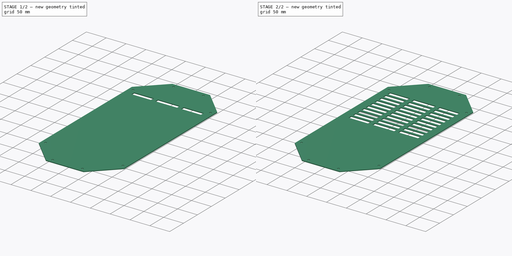
[diagram: build sequence overview — one tinted view per stage of 2, left to right]
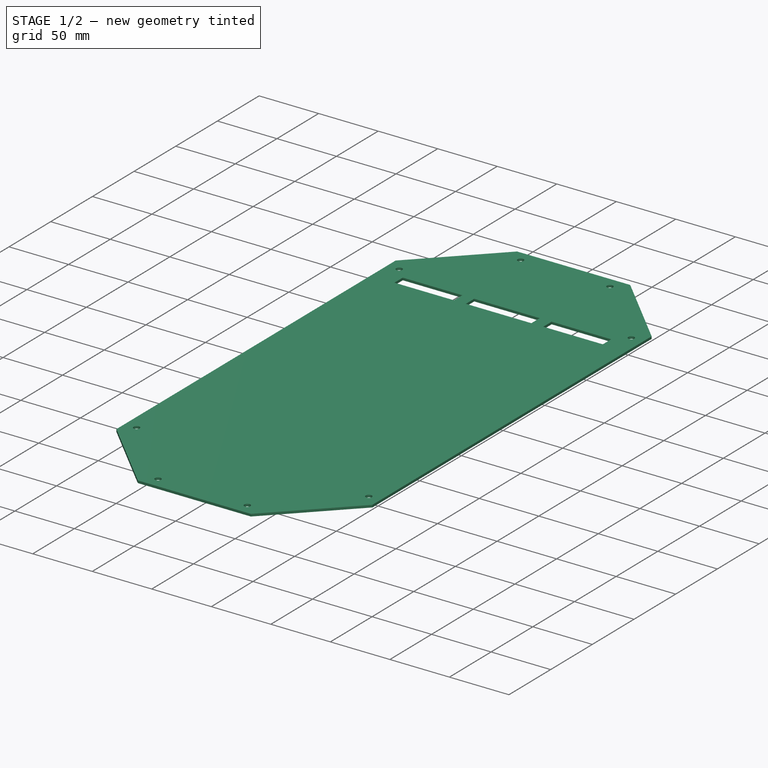
[diagram: stage 1 of 2 — iso view after this stage's code; geometry added in this stage tinted green]
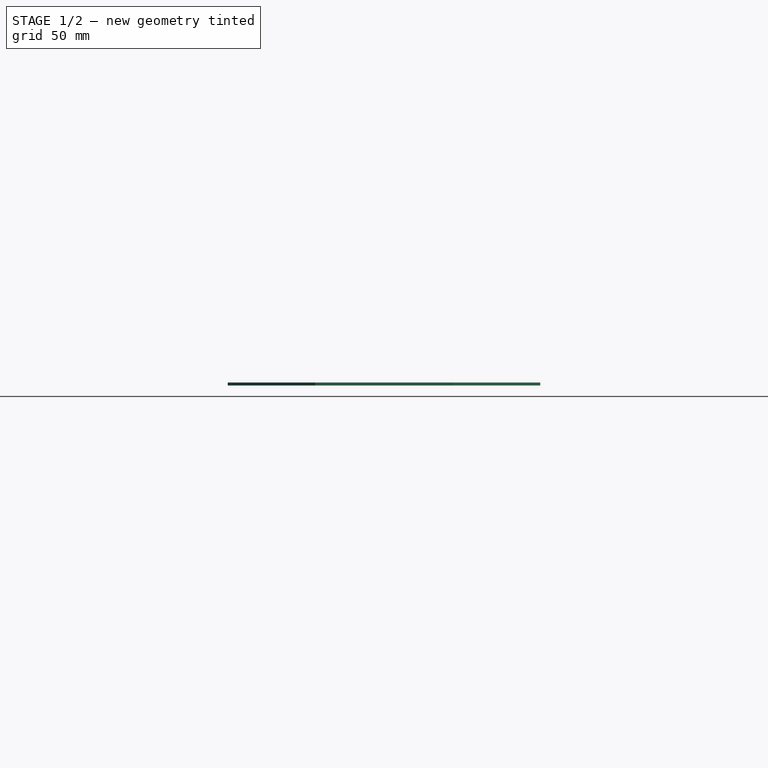
[diagram: stage 1 of 2 — front view after this stage's code; geometry added in this stage tinted green]
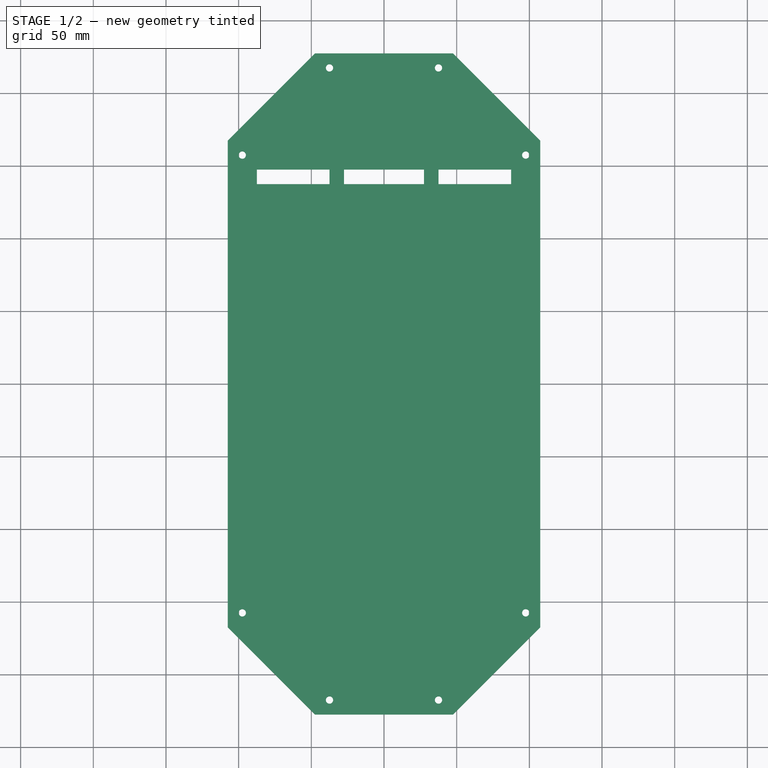
[diagram: stage 1 of 2 — top view after this stage's code; geometry added in this stage tinted green]
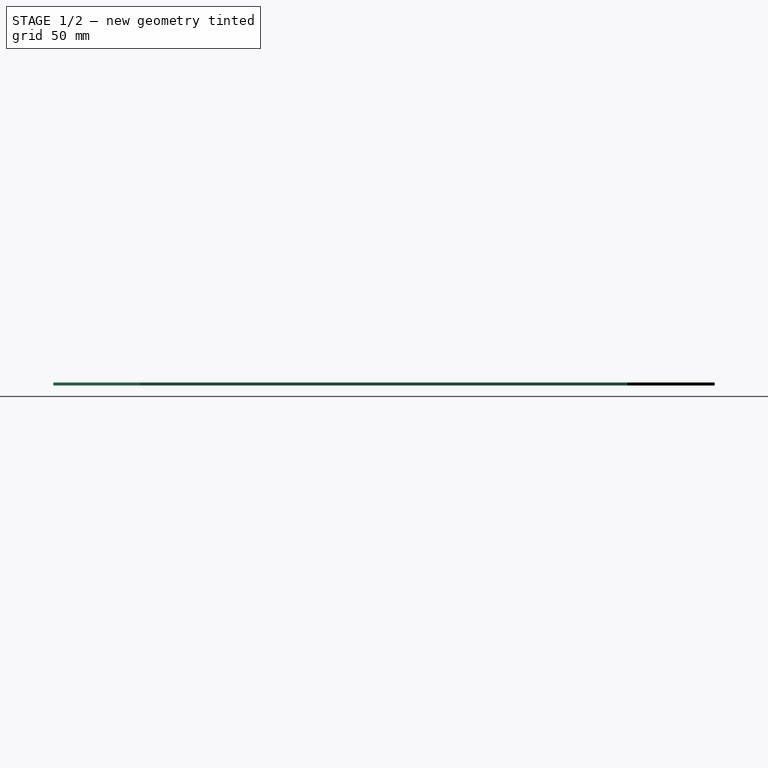
[diagram: stage 1 of 2 — right view after this stage's code; geometry added in this stage tinted green]
FCSTD DOCUMENT  (FreeCAD 0.16R6698 (Git))
Label: Back_Top_Plate
License: All rights reserved
LicenseURL: http://en.wikipedia.org/wiki/All_rights_reserved
objects: Sketcher::SketchObject×2, PartDesign::Pad×1, PartDesign::Pocket×1, PartDesign::LinearPattern×1
note: 7 computed .brp shape members not serialized (recipe doc carries the construction recipe); baked Part::Feature solids carry a one-line shape summary decoded from their .brp

FEATURE [Sketcher::SketchObject] Sketch
  sketch-geometry (16):
    g0: LineSegment StartX=-47.5 StartY=227.5 StartZ=0 EndX=47.5 EndY=227.5 EndZ=0
    g1: LineSegment StartX=107.5 StartY=167.5 StartZ=0 EndX=107.5 EndY=-167.5 EndZ=0
    g2: LineSegment StartX=47.5 StartY=-227.5 StartZ=0 EndX=-47.5 EndY=-227.5 EndZ=0
    g3: LineSegment StartX=-107.5 StartY=-167.5 StartZ=0 EndX=-107.5 EndY=167.5 EndZ=0
    g4: LineSegment StartX=-47.5 StartY=227.5 StartZ=0 EndX=-107.5 EndY=167.5 EndZ=0
    g5: LineSegment StartX=-107.5 StartY=-167.5 StartZ=0 EndX=-47.5 EndY=-227.5 EndZ=0
    g6: LineSegment StartX=47.5 StartY=-227.5 StartZ=0 EndX=107.5 EndY=-167.5 EndZ=0
    g7: LineSegment StartX=47.5 StartY=227.5 StartZ=0 EndX=107.5 EndY=167.5 EndZ=0
    g8: Circle CenterX=-97.5 CenterY=157.5 CenterZ=0 NormalX=0 NormalY=0 NormalZ=1 Radius=2.5
    g9: Circle CenterX=-37.5 CenterY=217.5 CenterZ=0 NormalX=0 NormalY=0 NormalZ=1 Radius=2.5
    g10: Circle CenterX=37.5 CenterY=217.5 CenterZ=0 NormalX=0 NormalY=0 NormalZ=1 Radius=2.5
    g11: Circle CenterX=97.5 CenterY=157.5 CenterZ=0 NormalX=0 NormalY=0 NormalZ=1 Radius=2.5
    g12: Circle CenterX=97.5 CenterY=-157.5 CenterZ=0 NormalX=0 NormalY=0 NormalZ=1 Radius=2.5
    g13: Circle CenterX=37.5 CenterY=-217.5 CenterZ=0 NormalX=0 NormalY=0 NormalZ=1 Radius=2.5
    g14: Circle CenterX=-37.5 CenterY=-217.5 CenterZ=0 NormalX=0 NormalY=0 NormalZ=1 Radius=2.5
    g15: Circle CenterX=-97.5 CenterY=-157.5 CenterZ=0 NormalX=0 NormalY=0 NormalZ=1 Radius=2.5
  constraints (43):
    c: Horizontal(g0)
    c: Horizontal(g2)
    c: Vertical(g1)
    c: Vertical(g3)
    c: Coincident(g4,g0)
    c: Coincident(g4,g3)
    c: Coincident(g5,g3)
    c: Coincident(g5,g2)
    c: Coincident(g6,g2)
    c: Coincident(g6,g1)
    c: DistanceX(g6,g6) = 60
    c: DistanceY(g6,g6) = 60
    c: DistanceX(g5,g5) = 60
    c: DistanceY(g5,g5) = 60
    c: DistanceX(g4,g4) = 60
    c: DistanceY(g4,g4) = 60
    c: Coincident(g7,g0)
    c: Coincident(g7,g1)
    c: DistanceX(g7,g7) = 60
    c: DistanceY(g7,g7) = 60
    c: DistanceX(g0,g0) = 95
    c: DistanceY(g3,g3) = 335
    c: Radius(g14) = 2.5
    c: Equal(g14,g15)
    c: Equal(g14, g8-g13) x6
    c: DistanceX(g3,g8) = 10
    c: DistanceY(g8,g3) = 10
    c: DistanceY(g9,g0) = 10
    c: DistanceX(g0,g9) = 10
    c: DistanceX(g10,g0) = 10
    c: DistanceY(g10,g0) = 10
    c: DistanceX(g11,g1) = 10
    c: DistanceY(g11,g1) = 10
    c: DistanceY(g3,g15) = 10
    c: DistanceX(g3,g15) = 10
    c: DistanceX(g2,g14) = 10
    c: DistanceY(g2,g14) = 10
    c: DistanceX(g13,g2) = 10
    c: DistanceY(g2,g13) = 10
    c: DistanceX(g12,g1) = 10
    c: DistanceY(g1,g12) = 10
    c: DistanceX(g3,g-1) = 107.5
    c: DistanceY(g-1,g3) = 167.5
FEATURE [PartDesign::Pad] Pad
  Length = 2
  Length2 = 100
  Sketch = -> Sketch
  Type = 0
FEATURE [Sketcher::SketchObject] Sketch001
  ExternalGeometry = -> [Pad]
  Placement = pos=(0,0,2) rot=(0,0,1;0rad)
  Support = -> Pad [Face18]
  sketch-geometry (12):
    g0: LineSegment StartX=-87.5 StartY=147.5 StartZ=0 EndX=-37.5 EndY=147.5 EndZ=0
    g1: LineSegment StartX=87.5 StartY=147.5 StartZ=0 EndX=87.5 EndY=137.5 EndZ=0
    g2: LineSegment StartX=87.5 StartY=137.5 StartZ=0 EndX=37.5 EndY=137.5 EndZ=0
    g3: LineSegment StartX=-87.5 StartY=137.5 StartZ=0 EndX=-87.5 EndY=147.5 EndZ=0
    g4: LineSegment StartX=-37.5 StartY=147.5 StartZ=0 EndX=-37.5 EndY=137.5 EndZ=0
    g5: LineSegment StartX=-27.5 StartY=147.5 StartZ=0 EndX=-27.5 EndY=137.5 EndZ=0
    g6: LineSegment StartX=27.5 StartY=147.5 StartZ=0 EndX=27.5 EndY=137.5 EndZ=0
    g7: LineSegment StartX=37.5 StartY=147.5 StartZ=0 EndX=37.5 EndY=137.5 EndZ=0
    g8: LineSegment StartX=37.5 StartY=147.5 StartZ=0 EndX=87.5 EndY=147.5 EndZ=0
    g9: LineSegment StartX=27.5 StartY=137.5 StartZ=0 EndX=-27.5 EndY=137.5 EndZ=0
    g10: LineSegment StartX=-27.5 StartY=147.5 StartZ=0 EndX=27.5 EndY=147.5 EndZ=0
    g11: LineSegment StartX=-37.5 StartY=137.5 StartZ=0 EndX=-87.5 EndY=137.5 EndZ=0
  constraints (34):
    c: Coincident(g8,g1)
    c: Coincident(g1,g2)
    c: Coincident(g11,g3)
    c: Coincident(g3,g0)
    c: Horizontal(g0)
    c: Horizontal(g2)
    c: Vertical(g1)
    c: Vertical(g3)
    c: DistanceY(g8,g-5) = 80
    c: DistanceX(g8,g-3) = 20
    c: DistanceX(g-4,g0) = 20
    c: DistanceY(g3,g3) = 10
    c: PointOnObject(g4,g2)
    c: Vertical(g4)
    c: PointOnObject(g5,g2)
    c: Vertical(g5)
    c: Vertical(g6)
    c: Vertical(g7)
    c: Coincident(g10,g6)
    c: Coincident(g8,g7)
    c: Tangent(g0,g8)
    c: Coincident(g2,g7)
    c: Coincident(g9,g6)
    c: Tangent(g2,g9)
    c: Coincident(g0,g4)
    c: Coincident(g10,g5)
    c: Tangent(g0,g10)
    c: PointOnObject(g9,g5)
    c: PointOnObject(g11,g4)
    c: Tangent(g9,g11)
    c: DistanceX(g0,g0) = 50
    c: DistanceX(g0,g5) = 10
    c: DistanceX(g6,g7) = 10
    c: DistanceX(g8,g8) = 50
FEATURE [PartDesign::Pocket] Pocket
  Length = 5
  Sketch = -> Sketch001
  Type = 0
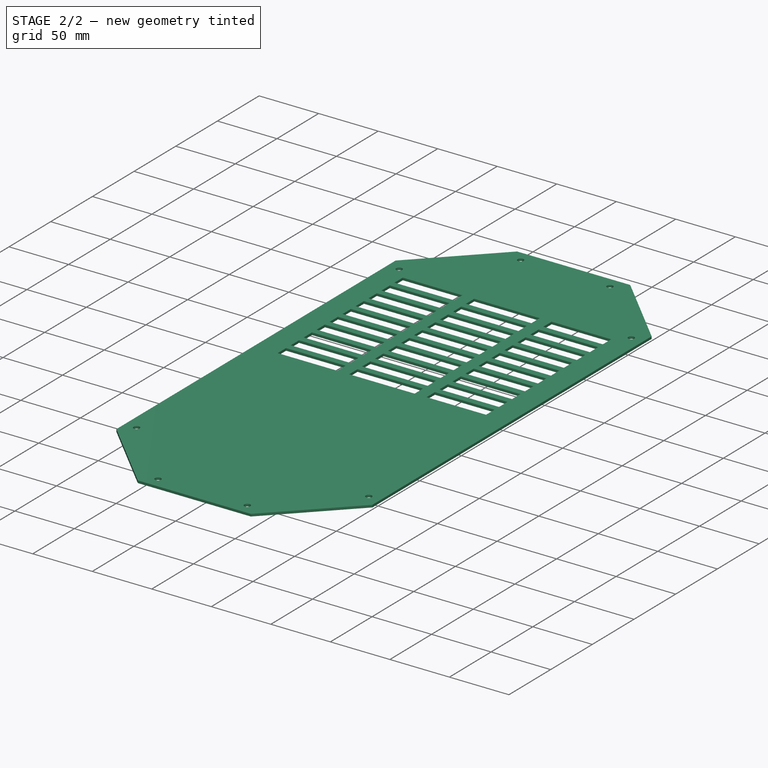
[diagram: stage 2 of 2 — iso view after this stage's code; geometry added in this stage tinted green]
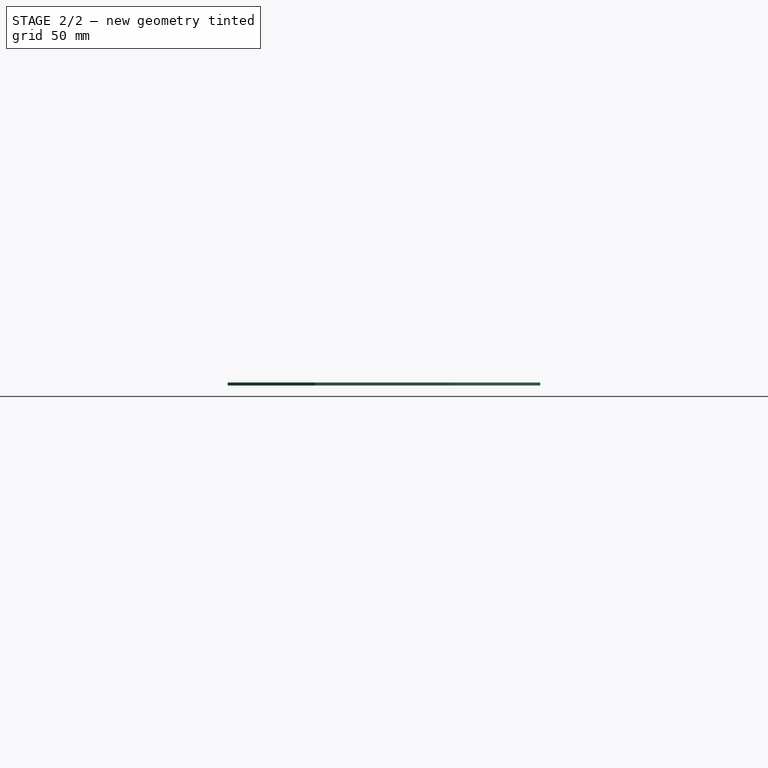
[diagram: stage 2 of 2 — front view after this stage's code; geometry added in this stage tinted green]
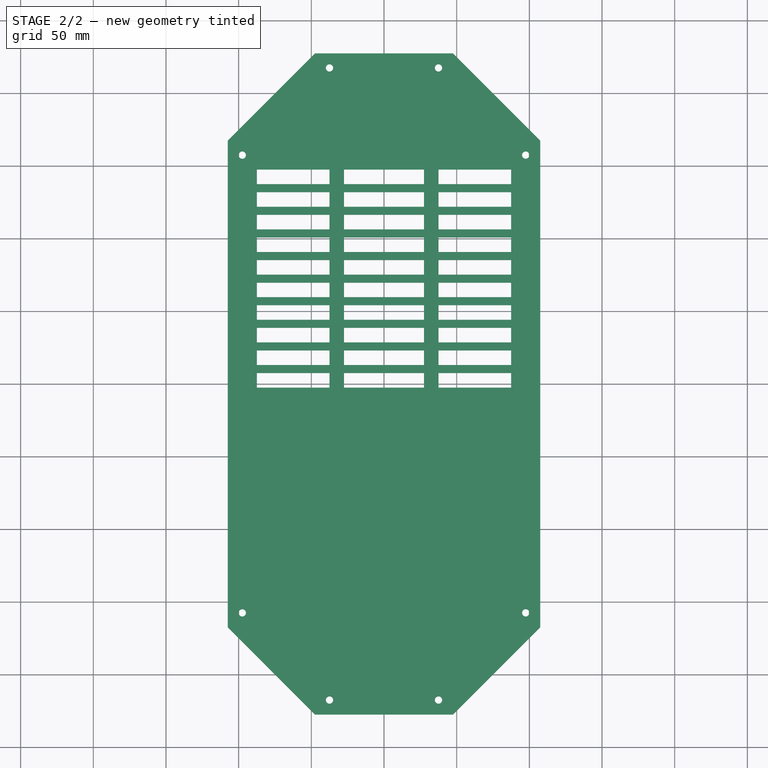
[diagram: stage 2 of 2 — top view after this stage's code; geometry added in this stage tinted green]
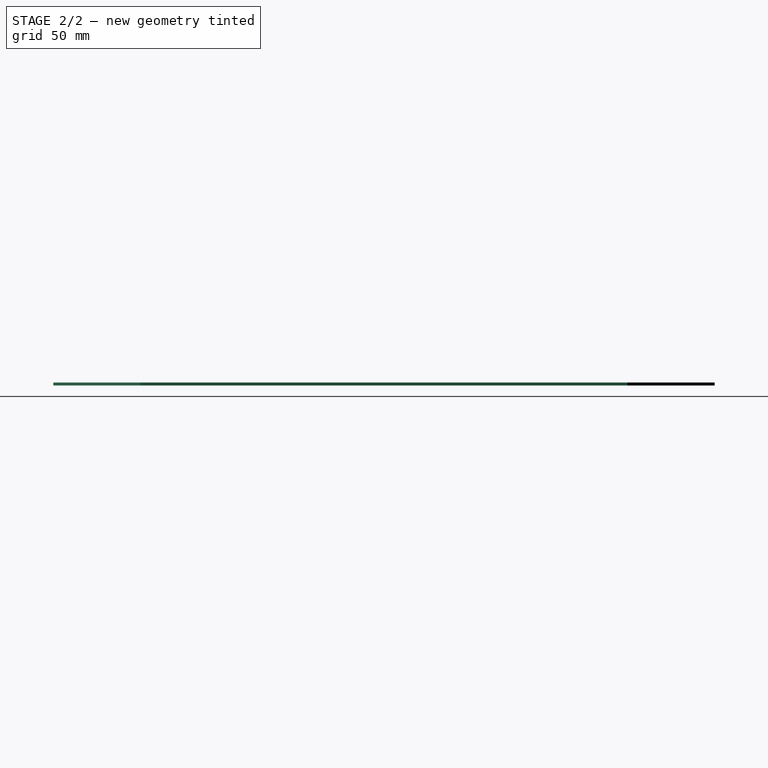
[diagram: stage 2 of 2 — right view after this stage's code; geometry added in this stage tinted green]
FEATURE [PartDesign::LinearPattern] LinearPattern
  Direction = -> Sketch001 [V_Axis]
  Length = 140
  Occurrences = 10
  Originals = -> [Pocket]
  Reversed = true
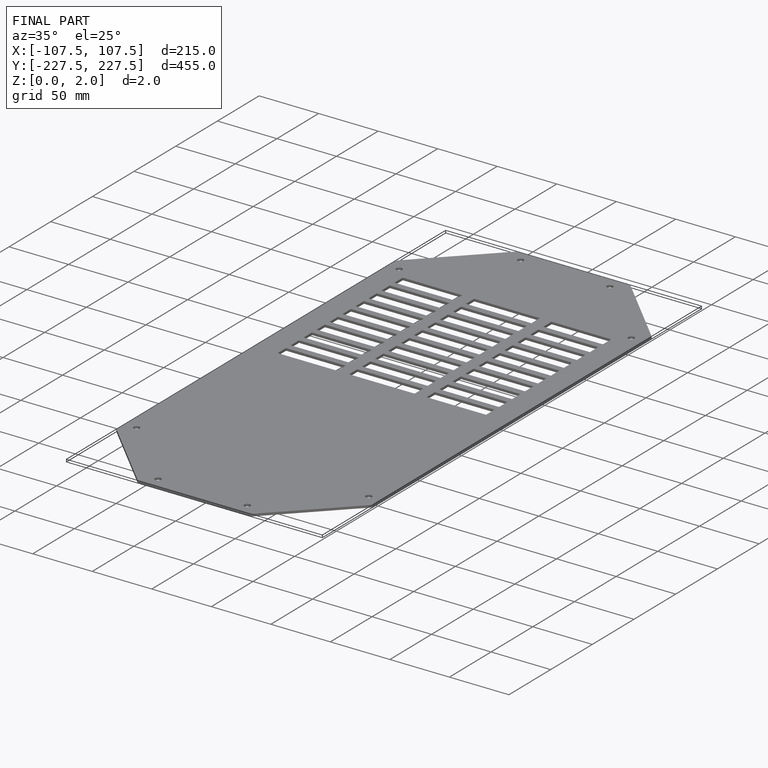
[diagram: finished part — iso view with bounding-box wireframe]
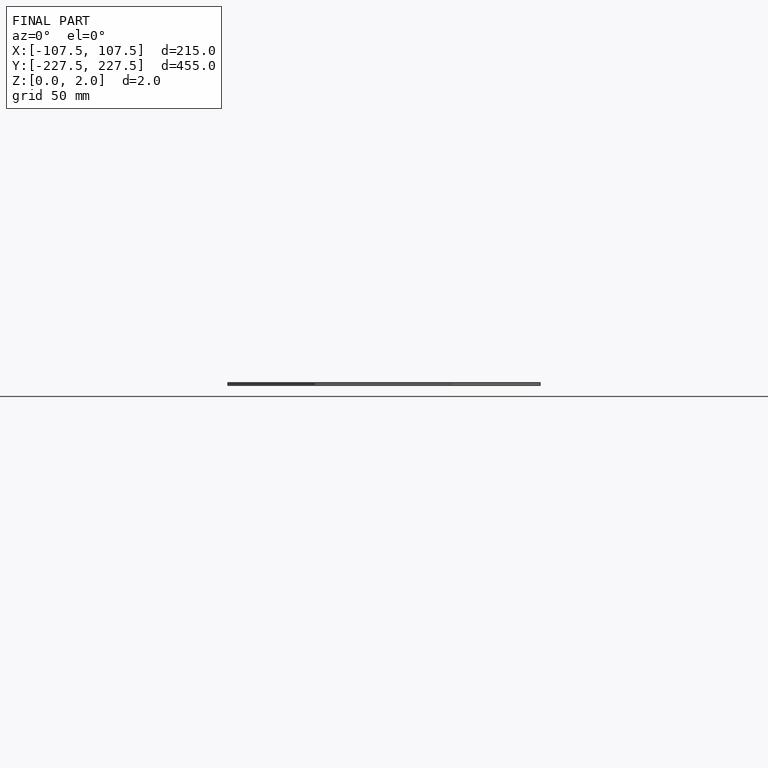
[diagram: finished part — front view with bounding-box wireframe]
